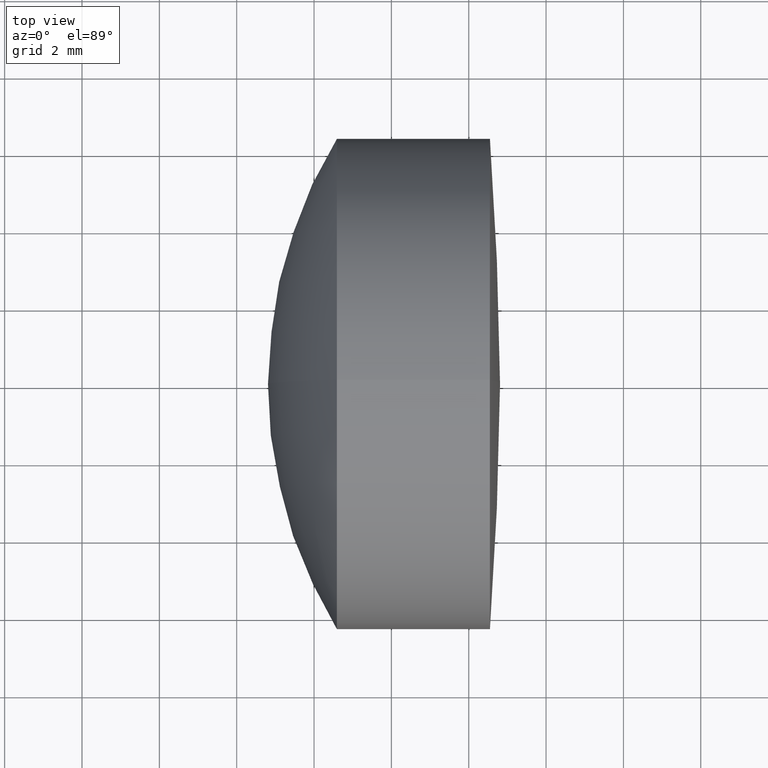
[diagram: clean part render]
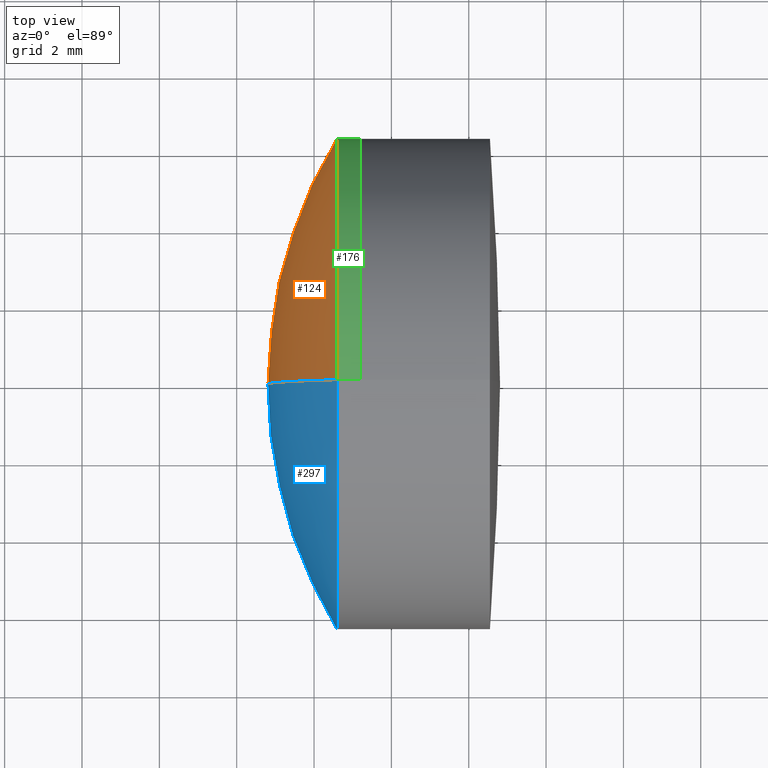
[diagram: same view with three faces highlighted in distinct colors, each labeled with its STEP entity id]
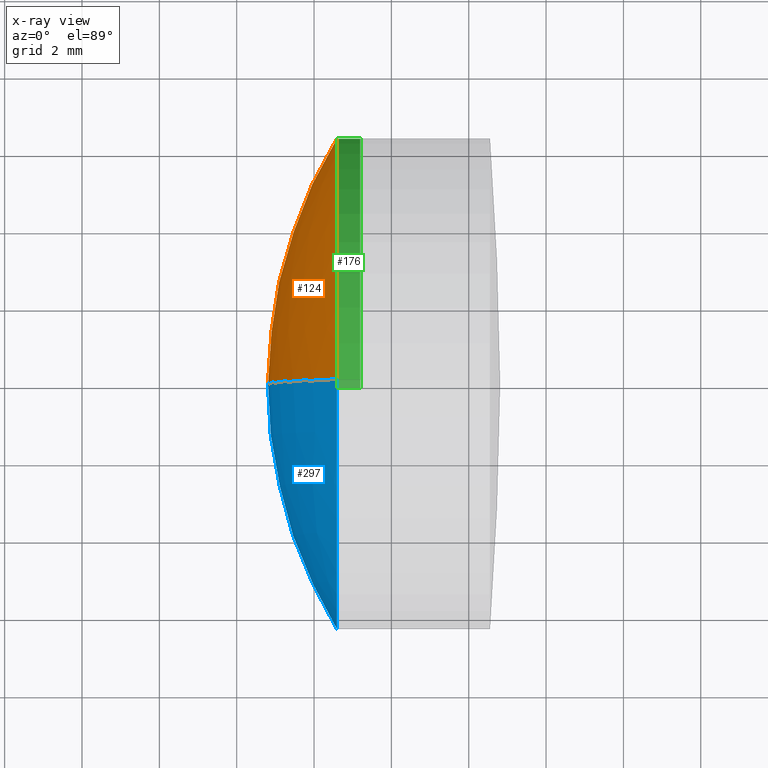
[diagram: x-ray of the same camera — body ghosted, the three highlighted faces saturated]
A machine part, top view with three faces highlighted in distinct colors.
The next image is the same camera in x-ray (body ghosted, the three faces saturated) — at least one of them is partly hidden behind the body in this view.
Their STEP definitions:

[orange] entity #124 — the highlighted spherical surface has radius 12.2 mm.
#9 = CIRCLE ( 'NONE', #308, 12.20000000000050000 ) ;
#10 = ORIENTED_EDGE ( 'NONE', *, *, #63, .F. ) ;
#12 = FACE_OUTER_BOUND ( 'NONE', #194, .T. ) ;
#30 = CARTESIAN_POINT ( 'NONE',  ( 279.0089566504702200, 0.0000000000000000000, -3.469447549560910600E-015 ) ) ;
#45 = CARTESIAN_POINT ( 'NONE',  ( 268.5917833294578300, 0.0000000000000000000, 0.0000000000000000000 ) ) ;
#60 = EDGE_CURVE ( 'NONE', #248, #294, #330, .T. ) ;
#61 = DIRECTION ( 'NONE',  ( 0.0000000000000000000, 1.000000000000000000, 0.0000000000000000000 ) ) ;
#63 = EDGE_CURVE ( 'NONE', #200, #294, #9, .T. ) ;
#81 = CARTESIAN_POINT ( 'NONE',  ( 268.5917833294578300, 7.776507174585689200E-016, -6.349999999999999600 ) ) ;
#91 = DIRECTION ( 'NONE',  ( 0.0000000000000000000, -1.000000000000000000, 0.0000000000000000000 ) ) ;
#99 = CIRCLE ( 'NONE', #270, 6.349999999999996100 ) ;
#114 = AXIS2_PLACEMENT_3D ( 'NONE', #30, #285, #292 ) ;
#115 = CARTESIAN_POINT ( 'NONE',  ( 279.0089566504702200, 0.0000000000000000000, -3.469447549560910600E-015 ) ) ;
#124 = ADVANCED_FACE ( 'NONE', ( #12 ), #159, .T. ) ;
#159 = SPHERICAL_SURFACE ( 'NONE', #324, 12.20000000000050000 ) ;
#168 = DIRECTION ( 'NONE',  ( 0.0000000000000000000, 0.0000000000000000000, 1.000000000000000000 ) ) ;
#178 = DIRECTION ( 'NONE',  ( 0.0000000000000000000, 0.0000000000000000000, 1.000000000000000000 ) ) ;
#194 = EDGE_LOOP ( 'NONE', ( #250, #332, #10 ) ) ;
#200 = VERTEX_POINT ( 'NONE', #211 ) ;
#211 = CARTESIAN_POINT ( 'NONE',  ( 268.5917833294578300, 0.0000000000000000000, 6.349999999999996100 ) ) ;
#248 = VERTEX_POINT ( 'NONE', #81 ) ;
#250 = ORIENTED_EDGE ( 'NONE', *, *, #338, .T. ) ;
#258 = CARTESIAN_POINT ( 'NONE',  ( 266.8089566504697200, 0.0000000000000000000, -2.722413002080994400E-015 ) ) ;
#265 = CARTESIAN_POINT ( 'NONE',  ( 279.0089566504702200, 0.0000000000000000000, -3.469447549560910600E-015 ) ) ;
#270 = AXIS2_PLACEMENT_3D ( 'NONE', #45, #328, #178 ) ;
#285 = DIRECTION ( 'NONE',  ( -0.0000000000000000000, 1.000000000000000000, 1.224646799147353200E-016 ) ) ;
#292 = DIRECTION ( 'NONE',  ( 0.0000000000000000000, -1.224646799147353200E-016, 1.000000000000000000 ) ) ;
#294 = VERTEX_POINT ( 'NONE', #258 ) ;
#308 = AXIS2_PLACEMENT_3D ( 'NONE', #265, #91, #323 ) ;
#323 = DIRECTION ( 'NONE',  ( 0.0000000000000000000, 0.0000000000000000000, -1.000000000000000000 ) ) ;
#324 = AXIS2_PLACEMENT_3D ( 'NONE', #115, #61, #168 ) ;
#328 = DIRECTION ( 'NONE',  ( -1.000000000000000000, -0.0000000000000000000, -0.0000000000000000000 ) ) ;
#330 = CIRCLE ( 'NONE', #114, 12.20000000000050000 ) ;
#332 = ORIENTED_EDGE ( 'NONE', *, *, #60, .T. ) ;
#338 = EDGE_CURVE ( 'NONE', #200, #248, #99, .T. ) ;

[blue] entity #297 — the highlighted spherical surface has radius 12.2 mm.
#9 = CIRCLE ( 'NONE', #308, 12.20000000000050000 ) ;
#27 = DIRECTION ( 'NONE',  ( 0.0000000000000000000, 1.000000000000000000, 0.0000000000000000000 ) ) ;
#30 = CARTESIAN_POINT ( 'NONE',  ( 279.0089566504702200, 0.0000000000000000000, -3.469447549560910600E-015 ) ) ;
#53 = ORIENTED_EDGE ( 'NONE', *, *, #130, .T. ) ;
#60 = EDGE_CURVE ( 'NONE', #248, #294, #330, .T. ) ;
#63 = EDGE_CURVE ( 'NONE', #200, #294, #9, .T. ) ;
#78 = EDGE_LOOP ( 'NONE', ( #153, #53, #301 ) ) ;
#81 = CARTESIAN_POINT ( 'NONE',  ( 268.5917833294578300, 7.776507174585689200E-016, -6.349999999999999600 ) ) ;
#91 = DIRECTION ( 'NONE',  ( 0.0000000000000000000, -1.000000000000000000, 0.0000000000000000000 ) ) ;
#102 = AXIS2_PLACEMENT_3D ( 'NONE', #254, #27, #276 ) ;
#114 = AXIS2_PLACEMENT_3D ( 'NONE', #30, #285, #292 ) ;
#130 = EDGE_CURVE ( 'NONE', #248, #200, #229, .T. ) ;
#153 = ORIENTED_EDGE ( 'NONE', *, *, #60, .F. ) ;
#175 = AXIS2_PLACEMENT_3D ( 'NONE', #192, #267, #195 ) ;
#189 = SPHERICAL_SURFACE ( 'NONE', #102, 12.20000000000050000 ) ;
#192 = CARTESIAN_POINT ( 'NONE',  ( 268.5917833294578300, 0.0000000000000000000, 0.0000000000000000000 ) ) ;
#195 = DIRECTION ( 'NONE',  ( 0.0000000000000000000, 0.0000000000000000000, 1.000000000000000000 ) ) ;
#200 = VERTEX_POINT ( 'NONE', #211 ) ;
#211 = CARTESIAN_POINT ( 'NONE',  ( 268.5917833294578300, 0.0000000000000000000, 6.349999999999996100 ) ) ;
#214 = FACE_OUTER_BOUND ( 'NONE', #78, .T. ) ;
#229 = CIRCLE ( 'NONE', #175, 6.349999999999996100 ) ;
#248 = VERTEX_POINT ( 'NONE', #81 ) ;
#254 = CARTESIAN_POINT ( 'NONE',  ( 279.0089566504702200, 0.0000000000000000000, -3.469447549560910600E-015 ) ) ;
#258 = CARTESIAN_POINT ( 'NONE',  ( 266.8089566504697200, 0.0000000000000000000, -2.722413002080994400E-015 ) ) ;
#265 = CARTESIAN_POINT ( 'NONE',  ( 279.0089566504702200, 0.0000000000000000000, -3.469447549560910600E-015 ) ) ;
#267 = DIRECTION ( 'NONE',  ( -1.000000000000000000, -0.0000000000000000000, -0.0000000000000000000 ) ) ;
#276 = DIRECTION ( 'NONE',  ( 0.0000000000000000000, 0.0000000000000000000, 1.000000000000000000 ) ) ;
#285 = DIRECTION ( 'NONE',  ( -0.0000000000000000000, 1.000000000000000000, 1.224646799147353200E-016 ) ) ;
#292 = DIRECTION ( 'NONE',  ( 0.0000000000000000000, -1.224646799147353200E-016, 1.000000000000000000 ) ) ;
#294 = VERTEX_POINT ( 'NONE', #258 ) ;
#297 = ADVANCED_FACE ( 'NONE', ( #214 ), #189, .T. ) ;
#301 = ORIENTED_EDGE ( 'NONE', *, *, #63, .T. ) ;
#308 = AXIS2_PLACEMENT_3D ( 'NONE', #265, #91, #323 ) ;
#323 = DIRECTION ( 'NONE',  ( 0.0000000000000000000, 0.0000000000000000000, -1.000000000000000000 ) ) ;
#330 = CIRCLE ( 'NONE', #114, 12.20000000000050000 ) ;

[green] entity #176 — the highlighted cylindrical surface (partial cylindrical patch) has radius 6.35 mm, axis along (-1, -0, -0).
#17 = EDGE_CURVE ( 'NONE', #92, #322, #39, .T. ) ;
#29 = ORIENTED_EDGE ( 'NONE', *, *, #338, .F. ) ;
#36 = CARTESIAN_POINT ( 'NONE',  ( 124.5233095260452400, 7.776507174585689200E-016, -6.349999999999996100 ) ) ;
#38 = VECTOR ( 'NONE', #96, 1000.000000000000000 ) ;
#39 = CIRCLE ( 'NONE', #107, 6.349999999999996100 ) ;
#45 = CARTESIAN_POINT ( 'NONE',  ( 268.5917833294578300, 0.0000000000000000000, 0.0000000000000000000 ) ) ;
#46 = CYLINDRICAL_SURFACE ( 'NONE', #303, 6.349999999999996100 ) ;
#57 = CARTESIAN_POINT ( 'NONE',  ( 124.5233095260452400, 0.0000000000000000000, 0.0000000000000000000 ) ) ;
#66 = CARTESIAN_POINT ( 'NONE',  ( 269.1964474457524300, 7.776507174585689200E-016, -6.349999999999996100 ) ) ;
#76 = EDGE_CURVE ( 'NONE', #322, #248, #123, .T. ) ;
#81 = CARTESIAN_POINT ( 'NONE',  ( 268.5917833294578300, 7.776507174585689200E-016, -6.349999999999999600 ) ) ;
#92 = VERTEX_POINT ( 'NONE', #289 ) ;
#94 = DIRECTION ( 'NONE',  ( -1.000000000000000000, -0.0000000000000000000, -0.0000000000000000000 ) ) ;
#96 = DIRECTION ( 'NONE',  ( -1.000000000000000000, -0.0000000000000000000, -0.0000000000000000000 ) ) ;
#99 = CIRCLE ( 'NONE', #270, 6.349999999999996100 ) ;
#106 = LINE ( 'NONE', #213, #38 ) ;
#107 = AXIS2_PLACEMENT_3D ( 'NONE', #137, #94, #171 ) ;
#123 = LINE ( 'NONE', #36, #300 ) ;
#137 = CARTESIAN_POINT ( 'NONE',  ( 269.1964474457524300, 0.0000000000000000000, 0.0000000000000000000 ) ) ;
#138 = EDGE_CURVE ( 'NONE', #92, #200, #106, .T. ) ;
#171 = DIRECTION ( 'NONE',  ( 0.0000000000000000000, 0.0000000000000000000, 1.000000000000000000 ) ) ;
#174 = ORIENTED_EDGE ( 'NONE', *, *, #76, .T. ) ;
#176 = ADVANCED_FACE ( 'NONE', ( #286 ), #46, .T. ) ;
#178 = DIRECTION ( 'NONE',  ( 0.0000000000000000000, 0.0000000000000000000, 1.000000000000000000 ) ) ;
#200 = VERTEX_POINT ( 'NONE', #211 ) ;
#207 = DIRECTION ( 'NONE',  ( 0.0000000000000000000, 0.0000000000000000000, 1.000000000000000000 ) ) ;
#211 = CARTESIAN_POINT ( 'NONE',  ( 268.5917833294578300, 0.0000000000000000000, 6.349999999999996100 ) ) ;
#213 = CARTESIAN_POINT ( 'NONE',  ( 124.5233095260452400, 0.0000000000000000000, 6.349999999999996100 ) ) ;
#248 = VERTEX_POINT ( 'NONE', #81 ) ;
#261 = ORIENTED_EDGE ( 'NONE', *, *, #17, .T. ) ;
#263 = EDGE_LOOP ( 'NONE', ( #261, #174, #29, #271 ) ) ;
#270 = AXIS2_PLACEMENT_3D ( 'NONE', #45, #328, #178 ) ;
#271 = ORIENTED_EDGE ( 'NONE', *, *, #138, .F. ) ;
#274 = DIRECTION ( 'NONE',  ( -1.000000000000000000, -0.0000000000000000000, -0.0000000000000000000 ) ) ;
#286 = FACE_OUTER_BOUND ( 'NONE', #263, .T. ) ;
#289 = CARTESIAN_POINT ( 'NONE',  ( 269.1964474457524300, 0.0000000000000000000, 6.349999999999996100 ) ) ;
#300 = VECTOR ( 'NONE', #344, 1000.000000000000000 ) ;
#303 = AXIS2_PLACEMENT_3D ( 'NONE', #57, #274, #207 ) ;
#322 = VERTEX_POINT ( 'NONE', #66 ) ;
#328 = DIRECTION ( 'NONE',  ( -1.000000000000000000, -0.0000000000000000000, -0.0000000000000000000 ) ) ;
#338 = EDGE_CURVE ( 'NONE', #200, #248, #99, .T. ) ;
#344 = DIRECTION ( 'NONE',  ( -1.000000000000000000, -0.0000000000000000000, -0.0000000000000000000 ) ) ;